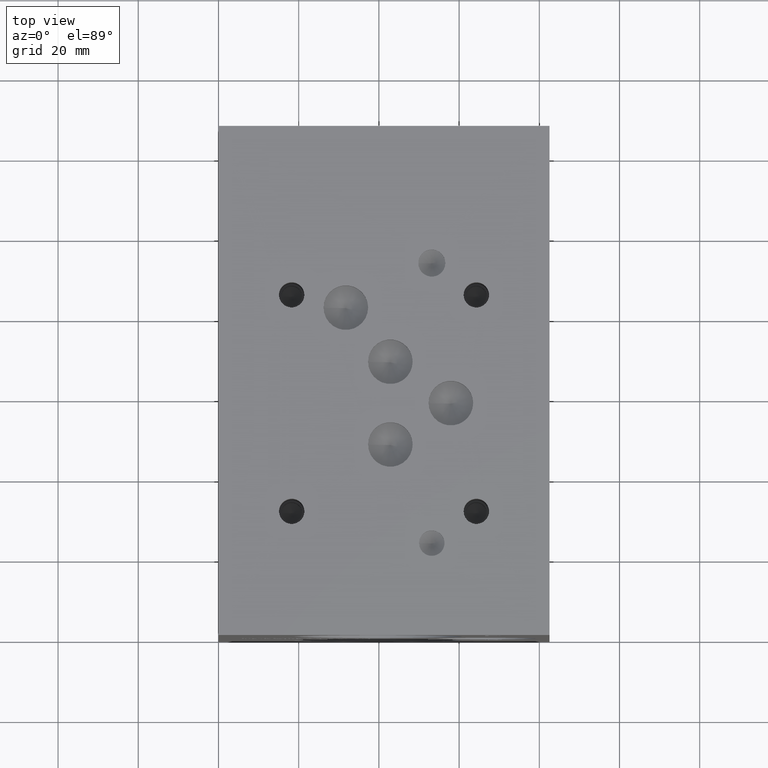
[diagram: clean part render]
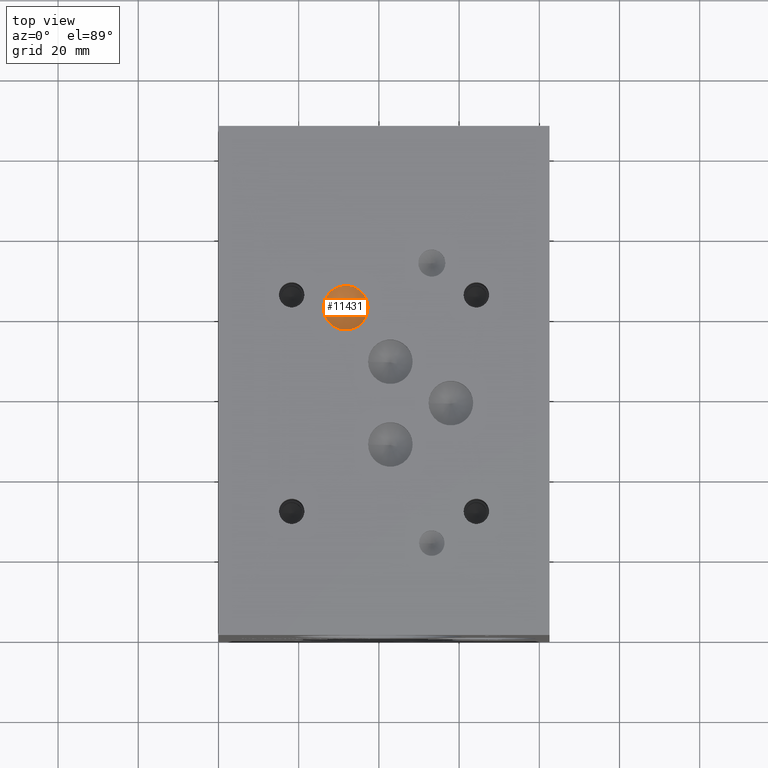
[diagram: same view with one face highlighted and labeled with its STEP entity id]
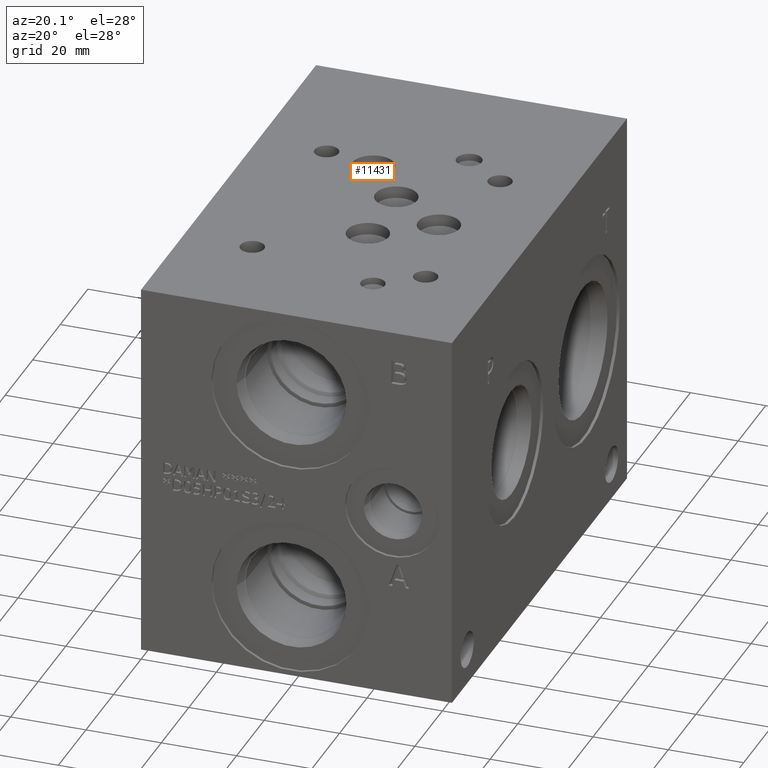
[diagram: same view with one face highlighted and labeled with its STEP entity id]
A machine part, top view. The second image highlights one B-rep face of the part: STEP entity #11431.
A second angle (auxiliary view) of the same face is appended — the face is thin or edge-on in the first view.
In plain terms, the highlighted conical surface has half-angle 60 deg.
Its self-contained STEP definition (entity closure, byte-faithful):
#88=CONICAL_SURFACE('',#11970,2.778125,1.0471975511966);
#195=CIRCLE('',#11971,5.55625);
#196=CIRCLE('',#11972,5.55625);
#1344=FACE_OUTER_BOUND('',#1993,.T.);
#1993=EDGE_LOOP('',(#9596,#9597,#9598,#9599));
#3128=LINE('',#19241,#4208);
#4208=VECTOR('',#14072,2.778125);
#5202=VERTEX_POINT('',#19237);
#5203=VERTEX_POINT('',#19238);
#5204=VERTEX_POINT('',#19240);
#6722=EDGE_CURVE('',#5202,#5203,#195,.T.);
#6723=EDGE_CURVE('',#5203,#5204,#3128,.T.);
#6724=EDGE_CURVE('',#5203,#5202,#196,.T.);
#9596=ORIENTED_EDGE('',*,*,#6722,.T.);
#9597=ORIENTED_EDGE('',*,*,#6723,.T.);
#9598=ORIENTED_EDGE('',*,*,#6723,.F.);
#9599=ORIENTED_EDGE('',*,*,#6724,.T.);
#11431=ADVANCED_FACE('',(#1344),#88,.F.);
#11970=AXIS2_PLACEMENT_3D('',#19236,#14068,#14069);
#11971=AXIS2_PLACEMENT_3D('',#19239,#14070,#14071);
#11972=AXIS2_PLACEMENT_3D('',#19242,#14073,#14074);
#14068=DIRECTION('center_axis',(0.,0.,1.));
#14069=DIRECTION('ref_axis',(1.,0.,0.));
#14070=DIRECTION('center_axis',(0.,0.,1.));
#14071=DIRECTION('ref_axis',(1.,0.,0.));
#14072=DIRECTION('',(0.866025403784439,1.06057523872491E-16,-0.5));
#14073=DIRECTION('center_axis',(0.,0.,1.));
#14074=DIRECTION('ref_axis',(1.,0.,0.));
#19236=CARTESIAN_POINT('Origin',(31.74492,81.6483,96.7881487834076));
#19237=CARTESIAN_POINT('',(37.30117,81.6483,98.3921));
#19238=CARTESIAN_POINT('',(26.18867,81.6483,98.3921));
#19239=CARTESIAN_POINT('Origin',(31.74492,81.6483,98.3921));
#19240=CARTESIAN_POINT('',(31.74492,81.6483,95.1841975668151));
#19241=CARTESIAN_POINT('',(28.966795,81.6483,96.7881487834076));
#19242=CARTESIAN_POINT('Origin',(31.74492,81.6483,98.3921));